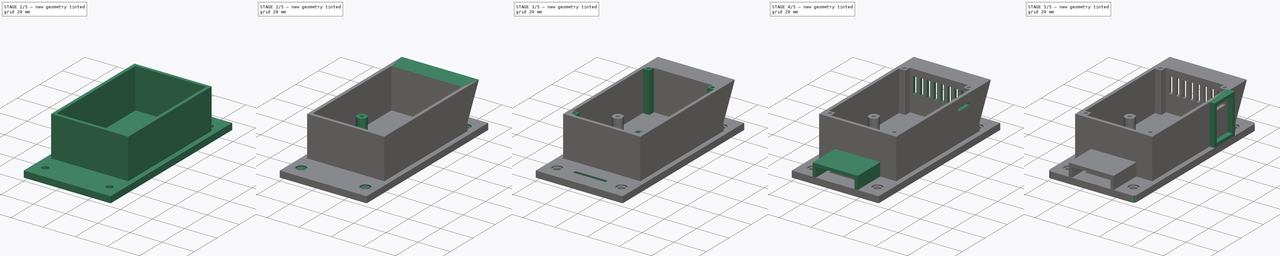
[diagram: build sequence overview — one tinted view per stage of 5, left to right]
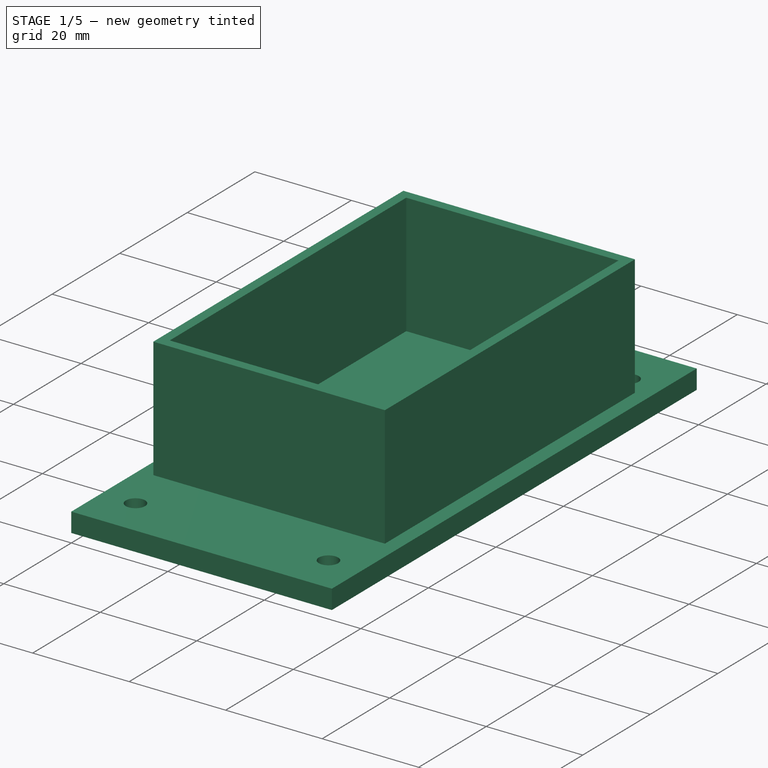
[diagram: stage 1 of 5 — iso view after this stage's code; geometry added in this stage tinted green]
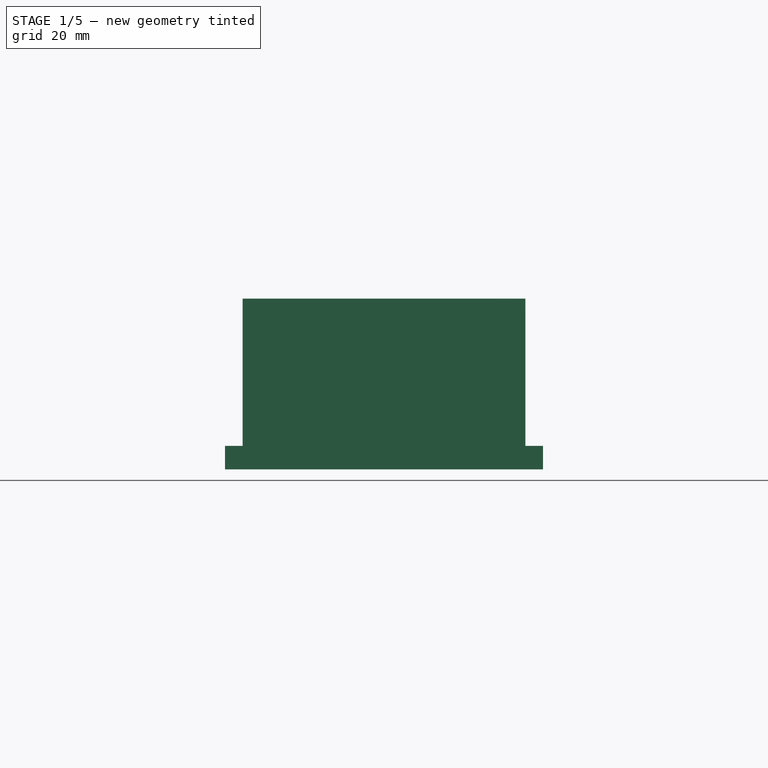
[diagram: stage 1 of 5 — front view after this stage's code; geometry added in this stage tinted green]
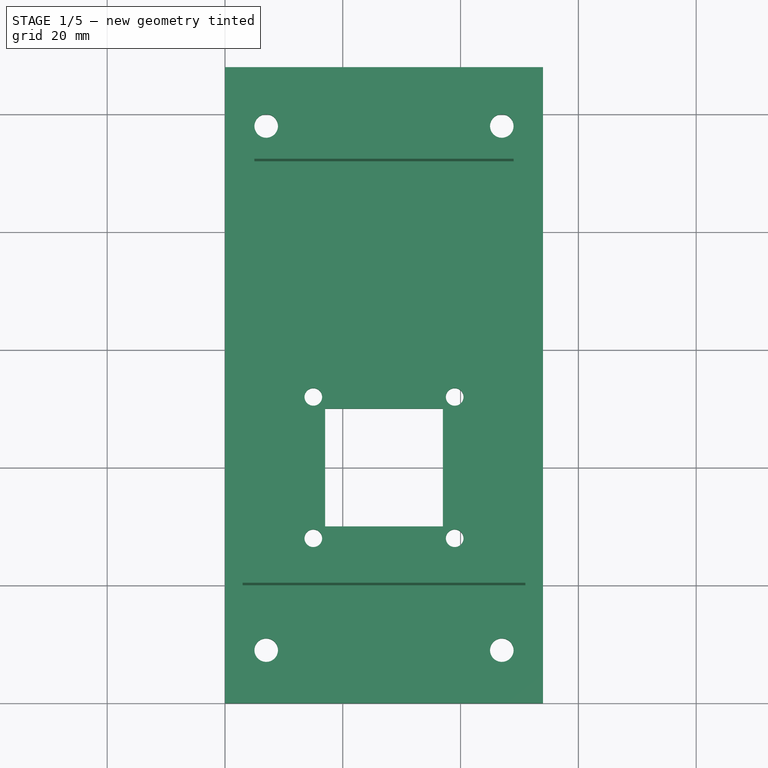
[diagram: stage 1 of 5 — top view after this stage's code; geometry added in this stage tinted green]
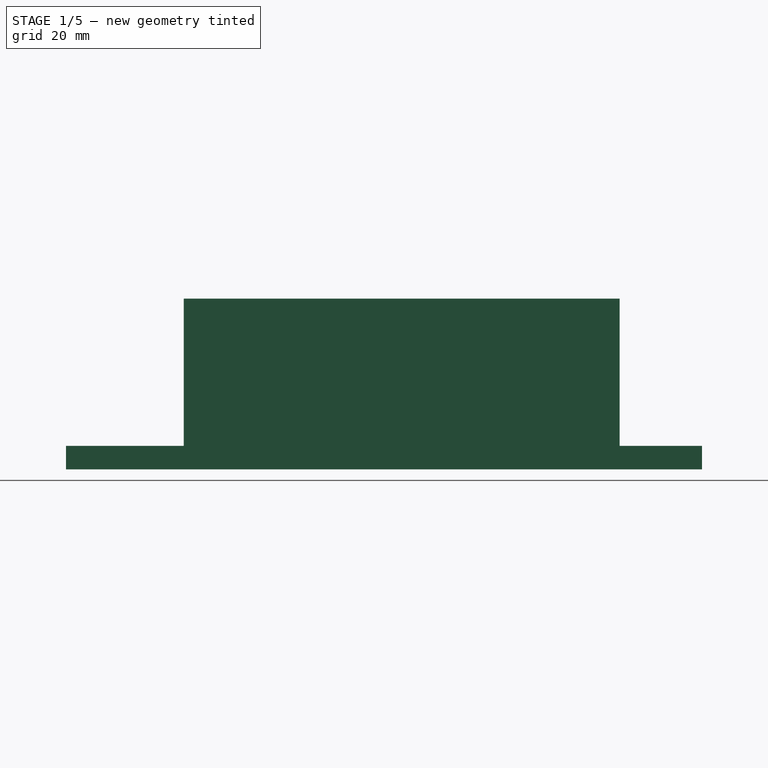
[diagram: stage 1 of 5 — right view after this stage's code; geometry added in this stage tinted green]
FCSTD DOCUMENT  (FreeCAD 0.16R6706 (Git))
Label: iROB-EA_Modulo_Sensores_V3
License: All rights reserved
LicenseURL: http://en.wikipedia.org/wiki/All_rights_reserved
objects: Sketcher::SketchObject×19, PartDesign::Pocket×10, PartDesign::Pad×9, PartDesign::Fillet×4, PartDesign::LinearPattern×1
note: 62 computed .brp shape members not serialized (recipe doc carries the construction recipe); baked Part::Feature solids carry a one-line shape summary decoded from their .brp

FEATURE [Sketcher::SketchObject] Sketch  label="Base"
  sketch-geometry (4):
    g0: LineSegment StartX=0 StartY=108 StartZ=0 EndX=54 EndY=108 EndZ=0
    g1: LineSegment StartX=54 StartY=108 StartZ=0 EndX=54 EndY=0 EndZ=0
    g2: LineSegment StartX=54 StartY=0 StartZ=0 EndX=0 EndY=0 EndZ=0
    g3: LineSegment StartX=0 StartY=0 StartZ=0 EndX=0 EndY=108 EndZ=0
  constraints (11):
    c: Coincident(g0,g1)
    c: Coincident(g1,g2)
    c: Coincident(g2,g3)
    c: Coincident(g3,g0)
    c: Horizontal(g0)
    c: Horizontal(g2)
    c: Vertical(g1)
    c: Vertical(g3)
    c: Coincident(g2,g-1)
    c: DistanceX(g2,g2) = 54
    c: DistanceY(g3,g3) = 108
FEATURE [PartDesign::Pad] Pad
  Length = 4
  Length2 = 100
  Sketch = -> Sketch
  Type = 0
FEATURE [Sketcher::SketchObject] Sketch001  label="Contenedor_Sensores"
  Placement = pos=(0,0,4) rot=(0,0,1;0rad)
  Support = -> Pad [Face6]
  sketch-geometry (8):
    g0: LineSegment StartX=3 StartY=94 StartZ=0 EndX=51 EndY=94 EndZ=0
    g1: LineSegment StartX=51 StartY=94 StartZ=0 EndX=51 EndY=20 EndZ=0
    g2: LineSegment StartX=51 StartY=20 StartZ=0 EndX=3 EndY=20 EndZ=0
    g3: LineSegment StartX=3 StartY=20 StartZ=0 EndX=3 EndY=94 EndZ=0
    g4: LineSegment StartX=5 StartY=92 StartZ=0 EndX=49 EndY=92 EndZ=0
    g5: LineSegment StartX=49 StartY=92 StartZ=0 EndX=49 EndY=22 EndZ=0
    g6: LineSegment StartX=49 StartY=22 StartZ=0 EndX=5 EndY=22 EndZ=0
    g7: LineSegment StartX=5 StartY=22 StartZ=0 EndX=5 EndY=92 EndZ=0
  constraints (24):
    c: Coincident(g0,g1)
    c: Coincident(g1,g2)
    c: Coincident(g2,g3)
    c: Coincident(g3,g0)
    c: Horizontal(g0)
    c: Horizontal(g2)
    c: Vertical(g1)
    c: Vertical(g3)
    c: DistanceX(g0,g0) = 48
    c: DistanceY(g3,g3) = 74
    c: Coincident(g4,g5)
    c: Coincident(g5,g6)
    c: Coincident(g6,g7)
    c: Coincident(g7,g4)
    c: Horizontal(g4)
    c: Horizontal(g6)
    c: Vertical(g5)
    c: Vertical(g7)
    c: DistanceX(g4,g4) = 44
    c: DistanceY(g7,g7) = 70
    c: DistanceX(g2,g6) = 2
    c: DistanceY(g2,g6) = 2
    c: DistanceX(g2,g-1) = -3
    c: DistanceY(g-1,g2) = 20
FEATURE [PartDesign::Pad] Pad001
  Length = 25
  Length2 = 100
  Sketch = -> Sketch001
  Type = 0
FEATURE [Sketcher::SketchObject] Sketch002  label="Tornillos_Base"
  Placement = pos=(0,0,4) rot=(0,0,1;0rad)
  Support = -> Pad001 [Face5]
  sketch-geometry (4):
    g0: Circle CenterX=7 CenterY=9 CenterZ=0 NormalX=0 NormalY=0 NormalZ=1 Radius=2
    g1: Circle CenterX=47 CenterY=9 CenterZ=0 NormalX=0 NormalY=0 NormalZ=1 Radius=2
    g2: Circle CenterX=7 CenterY=98 CenterZ=0 NormalX=0 NormalY=0 NormalZ=1 Radius=2
    g3: Circle CenterX=47 CenterY=98 CenterZ=0 NormalX=0 NormalY=0 NormalZ=1 Radius=2
  constraints (12):
    c: Radius(g0) = 2
    c: Radius(g1) = 2
    c: DistanceX(g0,g1) = 40
    c: DistanceY(g0,g1) = 0
    c: DistanceY(g-1,g0) = 9
    c: DistanceX(g0,g-1) = -7
    c: Radius(g3) = 2
    c: Radius(g2) = 2
    c: DistanceX(g2,g3) = 40
    c: DistanceY(g3,g2) = 0
    c: DistanceX(g2,g0) = 0
    c: DistanceY(g0,g2) = 89
FEATURE [PartDesign::Pocket] Pocket
  Length = 5
  Sketch = -> Sketch002
  Type = 0
FEATURE [Sketcher::SketchObject] Sketch003  label="Ventilador"
  Placement = pos=(0,0,4) rot=(0,0,1;0rad)
  Support = -> Pocket [Face5]
  sketch-geometry (4):
    g0: LineSegment StartX=17 StartY=50 StartZ=0 EndX=37 EndY=50 EndZ=0
    g1: LineSegment StartX=37 StartY=50 StartZ=0 EndX=37 EndY=30 EndZ=0
    g2: LineSegment StartX=37 StartY=30 StartZ=0 EndX=17 EndY=30 EndZ=0
    g3: LineSegment StartX=17 StartY=30 StartZ=0 EndX=17 EndY=50 EndZ=0
  constraints (12):
    c: Coincident(g0,g1)
    c: Coincident(g1,g2)
    c: Coincident(g2,g3)
    c: Coincident(g3,g0)
    c: Horizontal(g0)
    c: Horizontal(g2)
    c: Vertical(g1)
    c: Vertical(g3)
    c: DistanceX(g0,g0) = 20
    c: DistanceY(g1,g1) = 20
    c: DistanceX(g2,g-1) = -17
    c: DistanceY(g-1,g2) = 30
FEATURE [PartDesign::Pocket] Pocket001
  Length = 5
  Sketch = -> Sketch003
  Type = 0
FEATURE [Sketcher::SketchObject] Sketch004  label="Ventilador_Tornillos"
  Placement = pos=(0,0,4) rot=(0,0,1;0rad)
  Support = -> Pocket001 [Face19]
  sketch-geometry (4):
    g0: Circle CenterX=15 CenterY=52 CenterZ=0 NormalX=0 NormalY=0 NormalZ=1 Radius=1.5
    g1: Circle CenterX=39 CenterY=52 CenterZ=0 NormalX=0 NormalY=0 NormalZ=1 Radius=1.5
    g2: Circle CenterX=15 CenterY=28 CenterZ=0 NormalX=0 NormalY=0 NormalZ=1 Radius=1.5
    g3: Circle CenterX=39 CenterY=28 CenterZ=0 NormalX=0 NormalY=0 NormalZ=1 Radius=1.5
  constraints (12):
    c: Radius(g0) = 1.5
    c: Radius(g1) = 1.5
    c: DistanceY(g1,g0) = 0
    c: Radius(g2) = 1.5
    c: Radius(g3) = 1.5
    c: DistanceX(g2,g3) = 24
    c: DistanceX(g2,g0) = 0
    c: DistanceX(g3,g1) = 0
    c: DistanceY(g2,g0) = 24
    c: DistanceY(g2,g3) = 0
    c: DistanceX(g-1,g2) = 15
    c: DistanceY(g-1,g2) = 28
FEATURE [PartDesign::Pocket] Pocket002
  Length = 5
  Sketch = -> Sketch004
  Type = 0
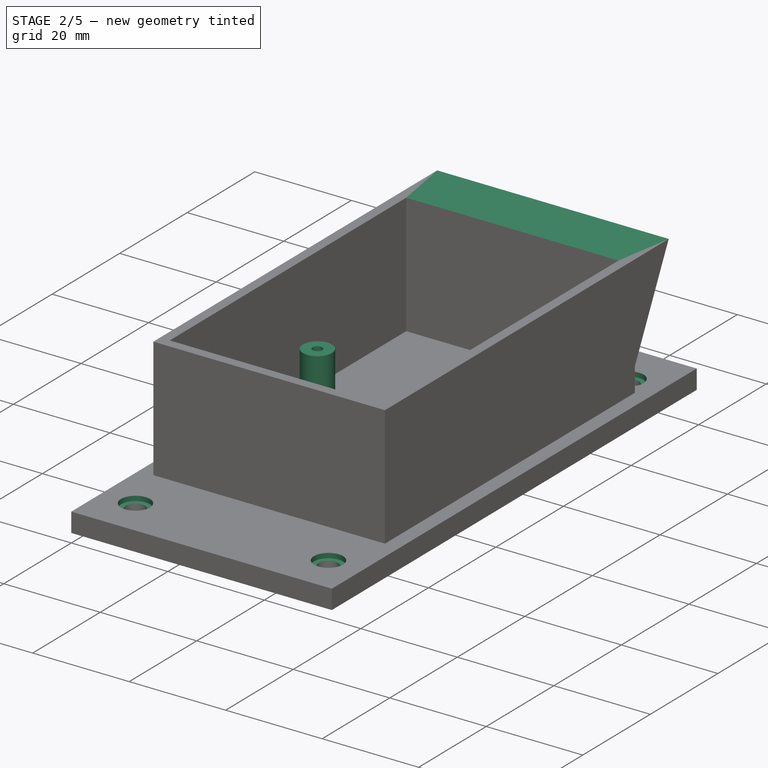
[diagram: stage 2 of 5 — iso view after this stage's code; geometry added in this stage tinted green]
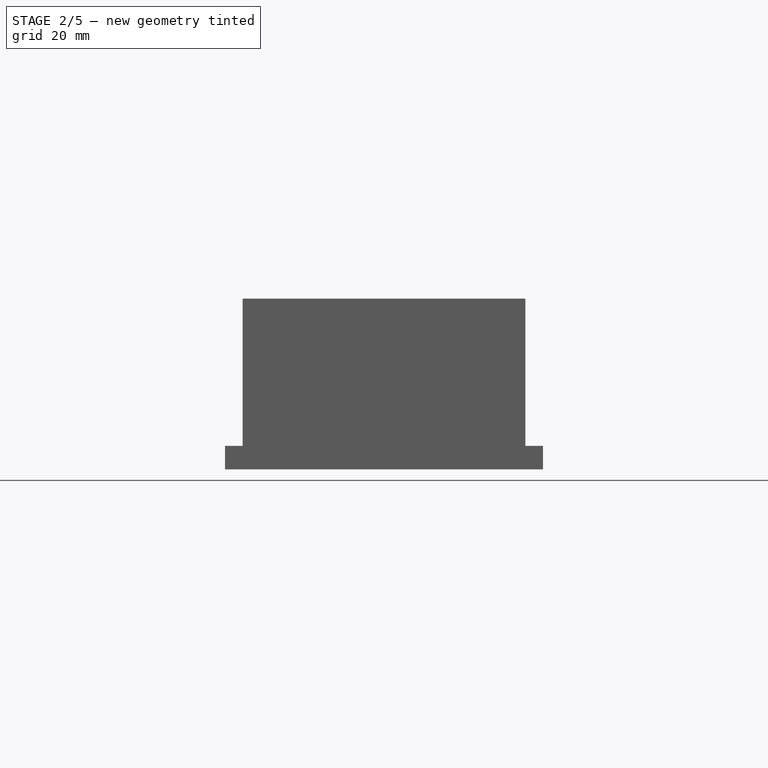
[diagram: stage 2 of 5 — front view after this stage's code; geometry added in this stage tinted green]
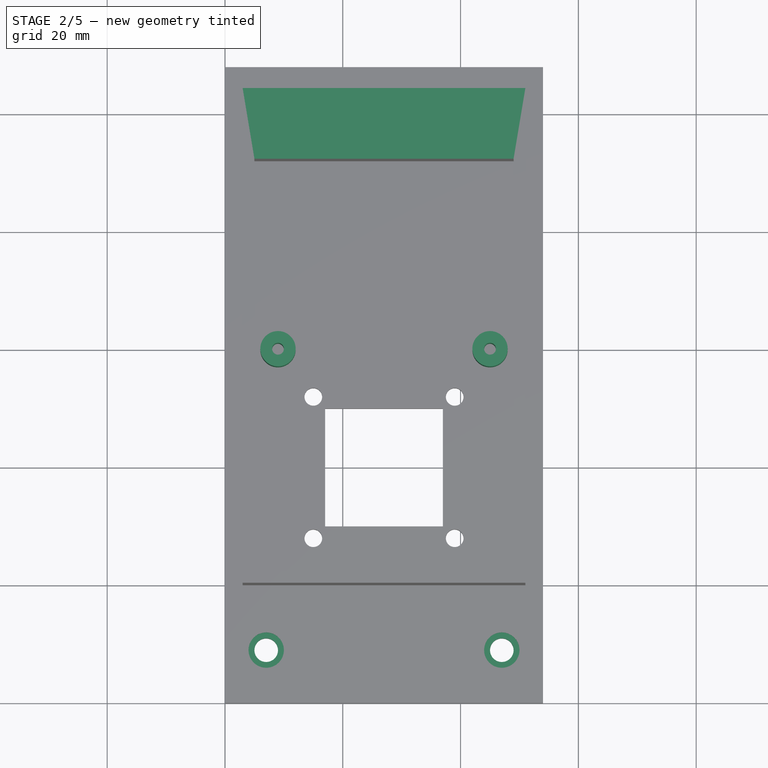
[diagram: stage 2 of 5 — top view after this stage's code; geometry added in this stage tinted green]
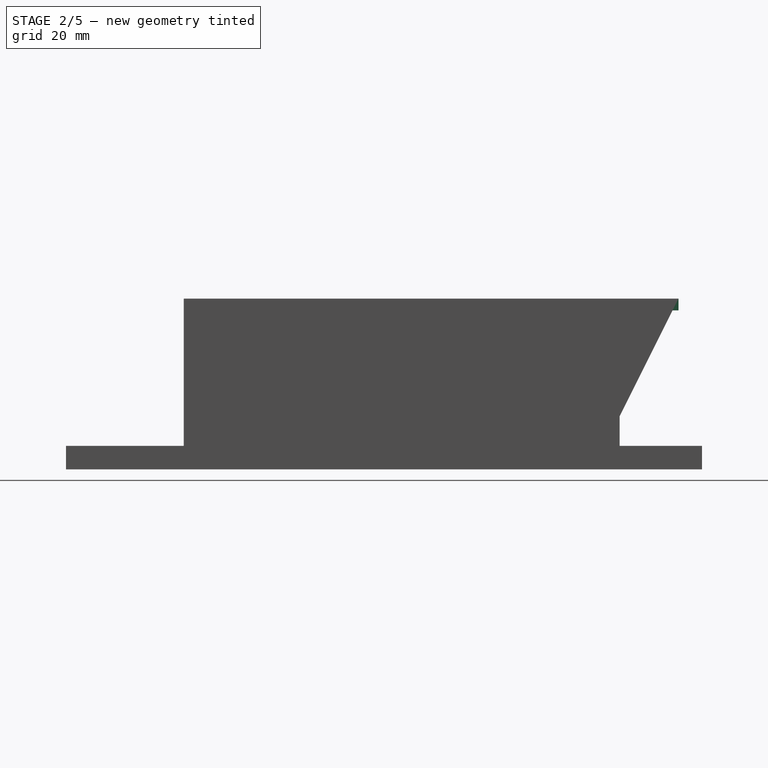
[diagram: stage 2 of 5 — right view after this stage's code; geometry added in this stage tinted green]
FEATURE [Sketcher::SketchObject] Sketch005  label="Soportes_Circuito"
  Placement = pos=(0,0,4) rot=(0,0,1;0rad)
  Support = -> Pocket002 [Face23]
  sketch-geometry (4):
    g0: Circle CenterX=9 CenterY=60 CenterZ=0 NormalX=0 NormalY=0 NormalZ=1 Radius=1
    g1: Circle CenterX=9 CenterY=60 CenterZ=0 NormalX=0 NormalY=0 NormalZ=1 Radius=3
    g2: Circle CenterX=45 CenterY=60 CenterZ=0 NormalX=0 NormalY=0 NormalZ=1 Radius=1
    g3: Circle CenterX=45 CenterY=60 CenterZ=0 NormalX=0 NormalY=0 NormalZ=1 Radius=3
  constraints (10):
    c: Radius(g0) = 1
    c: Radius(g1) = 3
    c: Coincident(g1,g0)
    c: Radius(g2) = 1
    c: Radius(g3) = 3
    c: Coincident(g2,g3)
    c: DistanceY(g2,g0) = 0
    c: DistanceX(g0,g2) = 36
    c: DistanceY(g-1,g0) = 60
    c: DistanceX(g-1,g0) = 9
FEATURE [PartDesign::Pad] Pad002
  Length = 10
  Length2 = 100
  Sketch = -> Sketch005
  Type = 0
FEATURE [Sketcher::SketchObject] Sketch006  label="Tornillos_Base_Protector"
  Placement = pos=(0,0,4) rot=(0,0,1;0rad)
  Support = -> Pad002 [Face5]
  sketch-geometry (4):
    g0: Circle CenterX=47 CenterY=98 CenterZ=0 NormalX=0 NormalY=0 NormalZ=1 Radius=3
    g1: Circle CenterX=7 CenterY=98 CenterZ=0 NormalX=0 NormalY=0 NormalZ=1 Radius=3
    g2: Circle CenterX=7 CenterY=9 CenterZ=0 NormalX=0 NormalY=0 NormalZ=1 Radius=3
    g3: Circle CenterX=47 CenterY=9 CenterZ=0 NormalX=0 NormalY=0 NormalZ=1 Radius=3
  constraints (12):
    c: Radius(g0) = 3
    c: Radius(g1) = 3
    c: DistanceY(g1,g0) = 0
    c: DistanceX(g1,g0) = 40
    c: Radius(g2) = 3
    c: Radius(g3) = 3
    c: DistanceY(g2,g3) = 0
    c: DistanceX(g1,g2) = 0
    c: DistanceY(g2,g1) = 89
    c: DistanceX(g3,g0) = 0
    c: DistanceY(g-1,g2) = 9
    c: DistanceX(g-1,g2) = 7
FEATURE [PartDesign::Pocket] Pocket003
  Length = 1
  Sketch = -> Sketch006
  Type = 0
FEATURE [Sketcher::SketchObject] Sketch007  label="Protector_Ranuras_Top"
  Placement = pos=(0,94,0) rot=(0,0.707107,0.707107;3.14159rad)
  Support = -> Pocket003 [Face23]
  sketch-geometry (4):
    g0: LineSegment StartX=-49 StartY=29 StartZ=0 EndX=-5 EndY=29 EndZ=0
    g1: LineSegment StartX=-5 StartY=29 StartZ=0 EndX=-5 EndY=27 EndZ=0
    g2: LineSegment StartX=-5 StartY=27 StartZ=0 EndX=-49 EndY=27 EndZ=0
    g3: LineSegment StartX=-49 StartY=27 StartZ=0 EndX=-49 EndY=29 EndZ=0
  constraints (12):
    c: Coincident(g0,g1)
    c: Coincident(g1,g2)
    c: Coincident(g2,g3)
    c: Coincident(g3,g0)
    c: Horizontal(g0)
    c: Horizontal(g2)
    c: Vertical(g1)
    c: Vertical(g3)
    c: DistanceY(g1,g1) = 2
    c: DistanceX(g0,g0) = 44
    c: DistanceY(g-1,g1) = 27
    c: DistanceX(g1,g-1) = 5
FEATURE [PartDesign::Pad] Pad003
  Length = 10
  Length2 = 100
  Sketch = -> Sketch007
  Type = 0
FEATURE [Sketcher::SketchObject] Sketch008  label="Protector_Ranuras_Izquierdo"
  Placement = pos=(49,0,0) rot=(0.57735,0.57735,0.57735;2.0944rad)
  Support = -> Pad003 [Face32]
  sketch-geometry (3):
    g0: LineSegment StartX=94 StartY=29 StartZ=0 EndX=104 EndY=29 EndZ=0
    g1: LineSegment StartX=94 StartY=29 StartZ=0 EndX=94 EndY=9 EndZ=0
    g2: LineSegment StartX=104 StartY=29 StartZ=0 EndX=94 EndY=9 EndZ=0
  constraints (9):
    c: Horizontal(g0)
    c: Vertical(g1)
    c: Coincident(g1,g0)
    c: DistanceX(g0,g0) = 10
    c: DistanceY(g1,g1) = 20
    c: Coincident(g2,g0)
    c: Coincident(g2,g1)
    c: DistanceX(g-1,g1) = 94
    c: DistanceY(g-1,g1) = 9
FEATURE [PartDesign::Pad] Pad004
  Length = 2
  Length2 = 100
  Sketch = -> Sketch008
  Type = 0
FEATURE [Sketcher::SketchObject] Sketch009  label="Protector_Ranuras_Derecho"
  Placement = pos=(5,0,0) rot=(0.57735,-0.57735,-0.57735;2.0944rad)
  Support = -> Pad004 [Face34]
  sketch-geometry (3):
    g0: LineSegment StartX=-104 StartY=29 StartZ=0 EndX=-94 EndY=29 EndZ=0
    g1: LineSegment StartX=-94 StartY=29 StartZ=0 EndX=-94 EndY=9 EndZ=0
    g2: LineSegment StartX=-104 StartY=29 StartZ=0 EndX=-94 EndY=9 EndZ=0
  constraints (9):
    c: Horizontal(g0)
    c: DistanceX(g0,g0) = 10
    c: Vertical(g1)
    c: DistanceY(g1,g1) = 20
    c: Coincident(g0,g1)
    c: Coincident(g2,g0)
    c: Coincident(g1,g2)
    c: DistanceX(g1,g-1) = 94
    c: DistanceY(g-1,g1) = 9
FEATURE [PartDesign::Pad] Pad005
  Length = 2
  Length2 = 100
  Sketch = -> Sketch009
  Type = 0
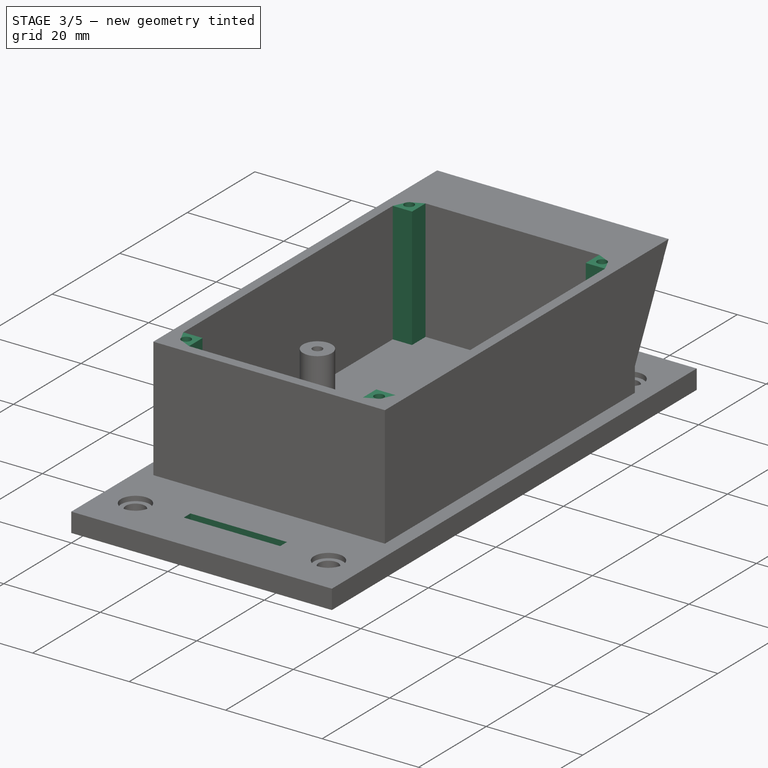
[diagram: stage 3 of 5 — iso view after this stage's code; geometry added in this stage tinted green]
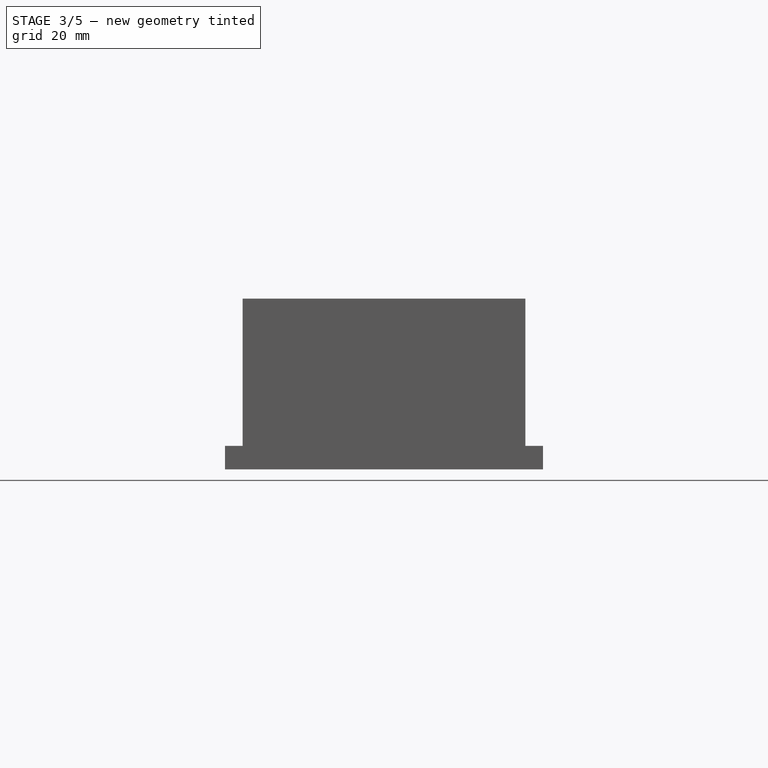
[diagram: stage 3 of 5 — front view after this stage's code; geometry added in this stage tinted green]
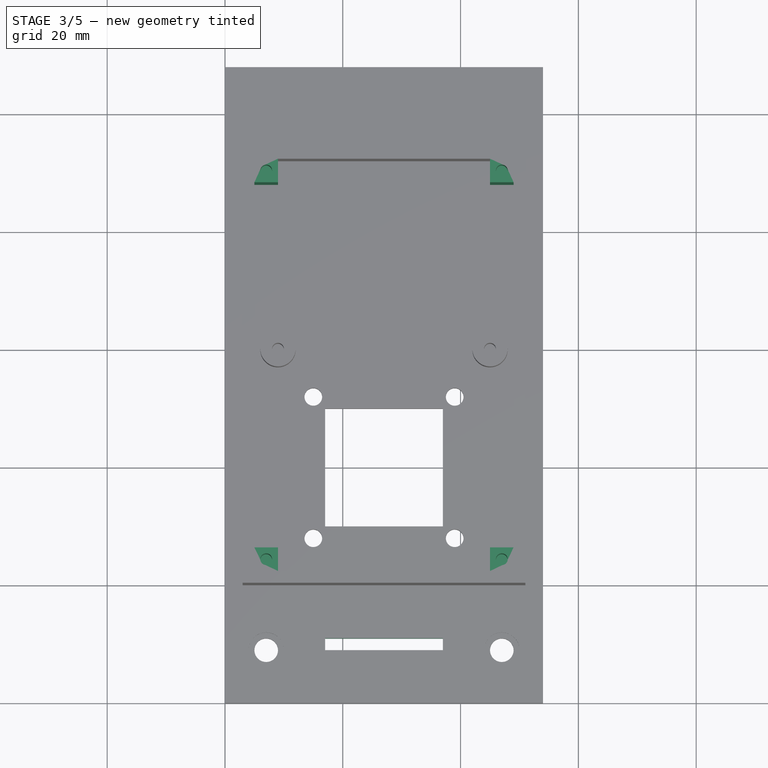
[diagram: stage 3 of 5 — top view after this stage's code; geometry added in this stage tinted green]
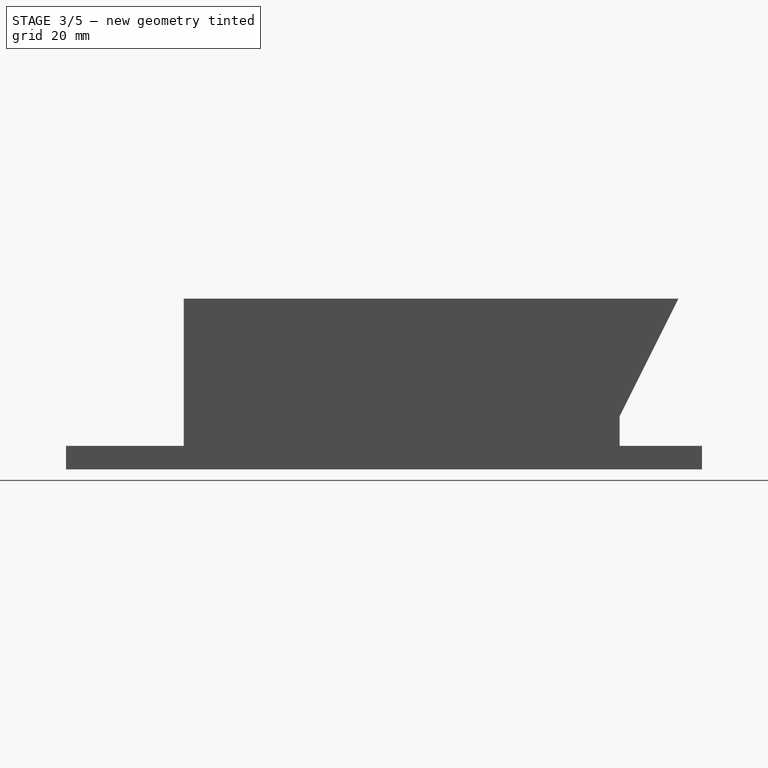
[diagram: stage 3 of 5 — right view after this stage's code; geometry added in this stage tinted green]
FEATURE [Sketcher::SketchObject] Sketch010  label="Protector_Ranuras_Eliminado_Borde"
  Placement = pos=(5,0,0) rot=(0.57735,-0.57735,-0.57735;2.0944rad)
  Support = -> Pad005 [Face43]
  sketch-geometry (3):
    g0: LineSegment StartX=-104.428 StartY=29.8884 StartZ=0 EndX=-104.428 EndY=26.0348 EndZ=0
    g1: LineSegment StartX=-104.428 StartY=26.0348 StartZ=0 EndX=-102.461 EndY=26.0348 EndZ=0
    g2: LineSegment StartX=-104.428 StartY=29.8884 StartZ=0 EndX=-102.461 EndY=26.0348 EndZ=0
  constraints (5):
    c: Vertical(g0)
    c: Horizontal(g1)
    c: Coincident(g0,g1)
    c: Coincident(g2,g0)
    c: Coincident(g2,g1)
FEATURE [PartDesign::Pocket] Pocket004
  Length = 60
  Sketch = -> Sketch010
  Type = 0
FEATURE [Sketcher::SketchObject] Sketch011  label="Soportes_Tornillos_Tapa"
  Placement = pos=(0,0,4) rot=(0,0,1;0rad)
  Support = -> Pocket004 [Face27]
  sketch-geometry (16):
    g0: LineSegment StartX=5 StartY=92 StartZ=0 EndX=9 EndY=92 EndZ=0
    g1: LineSegment StartX=9 StartY=92 StartZ=0 EndX=9 EndY=88 EndZ=0
    g2: LineSegment StartX=9 StartY=88 StartZ=0 EndX=5 EndY=88 EndZ=0
    g3: LineSegment StartX=5 StartY=88 StartZ=0 EndX=5 EndY=92 EndZ=0
    g4: LineSegment StartX=45 StartY=92 StartZ=0 EndX=49 EndY=92 EndZ=0
    g5: LineSegment StartX=49 StartY=92 StartZ=0 EndX=49 EndY=88 EndZ=0
    g6: LineSegment StartX=49 StartY=88 StartZ=0 EndX=45 EndY=88 EndZ=0
    g7: LineSegment StartX=45 StartY=88 StartZ=0 EndX=45 EndY=92 EndZ=0
    g8: LineSegment StartX=5 StartY=26 StartZ=0 EndX=9 EndY=26 EndZ=0
    g9: LineSegment StartX=9 StartY=26 StartZ=0 EndX=9 EndY=22 EndZ=0
    g10: LineSegment StartX=9 StartY=22 StartZ=0 EndX=5 EndY=22 EndZ=0
    g11: LineSegment StartX=5 StartY=22 StartZ=0 EndX=5 EndY=26 EndZ=0
    g12: LineSegment StartX=45 StartY=26 StartZ=0 EndX=49 EndY=26 EndZ=0
    g13: LineSegment StartX=49 StartY=26 StartZ=0 EndX=49 EndY=22 EndZ=0
    g14: LineSegment StartX=49 StartY=22 StartZ=0 EndX=45 EndY=22 EndZ=0
    g15: LineSegment StartX=45 StartY=22 StartZ=0 EndX=45 EndY=26 EndZ=0
  constraints (48):
    c: Coincident(g0,g1)
    c: Coincident(g1,g2)
    c: Coincident(g2,g3)
    c: Coincident(g3,g0)
    c: Horizontal(g0)
    c: Horizontal(g2)
    c: Vertical(g1)
    c: Vertical(g3)
    c: DistanceX(g0,g0) = 4
    c: DistanceY(g1,g1) = 4
    c: Coincident(g4,g5)
    c: Coincident(g5,g6)
    c: Coincident(g6,g7)
    c: Coincident(g7,g4)
    c: Horizontal(g4)
    c: Horizontal(g6)
    c: Vertical(g5)
    c: Vertical(g7)
    c: DistanceX(g4,g4) = 4
    c: DistanceY(g5,g5) = 4
    c: DistanceY(g6,g1) = 0
    c: DistanceX(g1,g6) = 36
    c: Coincident(g8,g9)
    c: Coincident(g9,g10)
    c: Coincident(g10,g11)
    c: Coincident(g11,g8)
    c: Horizontal(g8)
    c: Horizontal(g10)
    c: Vertical(g9)
    c: Vertical(g11)
    c: DistanceX(g8,g8) = 4
    c: DistanceY(g9,g9) = 4
    c: DistanceY(g8,g2) = 62
    c: DistanceX(g2,g8) = 0
    c: Coincident(g12,g13)
    c: Coincident(g13,g14)
    c: Coincident(g14,g15)
    c: Coincident(g15,g12)
    c: Horizontal(g12)
    c: Horizontal(g14)
    c: Vertical(g13)
    c: Vertical(g15)
    c: DistanceX(g12,g12) = 4
    c: DistanceY(g15,g15) = 4
    c: DistanceY(g9,g14) = 0
    c: DistanceX(g9,g14) = 36
    c: DistanceX(g-1,g10) = 5
    c: DistanceY(g-1,g10) = 22
FEATURE [PartDesign::Pad] Pad006
  Length = 25
  Length2 = 100
  Sketch = -> Sketch011
  Type = 0
FEATURE [Sketcher::SketchObject] Sketch012  label="Soportes_Tornillos_Taladro"
  Placement = pos=(0,0,29) rot=(0,0,1;0rad)
  Support = -> Pad006 [Face59]
  sketch-geometry (4):
    g0: Circle CenterX=7 CenterY=90 CenterZ=0 NormalX=0 NormalY=0 NormalZ=1 Radius=1
    g1: Circle CenterX=47 CenterY=90 CenterZ=0 NormalX=0 NormalY=0 NormalZ=1 Radius=1
    g2: Circle CenterX=7 CenterY=24 CenterZ=0 NormalX=0 NormalY=0 NormalZ=1 Radius=1
    g3: Circle CenterX=47 CenterY=24 CenterZ=0 NormalX=0 NormalY=0 NormalZ=1 Radius=1
  constraints (12):
    c: Radius(g0) = 1
    c: Radius(g1) = 1
    c: DistanceY(g1,g0) = 0
    c: DistanceX(g0,g1) = 40
    c: Radius(g2) = 1
    c: Radius(g3) = 1
    c: DistanceY(g3,g2) = 0
    c: DistanceX(g0,g2) = 0
    c: DistanceY(g2,g0) = 66
    c: DistanceX(g3,g1) = 0
    c: DistanceY(g-1,g2) = 24
    c: DistanceX(g-1,g2) = 7
FEATURE [PartDesign::Pocket] Pocket005
  Length = 10
  Sketch = -> Sketch012
  Type = 0
FEATURE [Sketcher::SketchObject] Sketch013  label="Ranura_Cable_Principal_Base"
  Placement = pos=(0,0,4) rot=(0,0,1;0rad)
  Support = -> Pocket005 [Face5]
  sketch-geometry (4):
    g0: LineSegment StartX=17 StartY=11 StartZ=0 EndX=37 EndY=11 EndZ=0
    g1: LineSegment StartX=37 StartY=11 StartZ=0 EndX=37 EndY=9 EndZ=0
    g2: LineSegment StartX=37 StartY=9 StartZ=0 EndX=17 EndY=9 EndZ=0
    g3: LineSegment StartX=17 StartY=9 StartZ=0 EndX=17 EndY=11 EndZ=0
  constraints (12):
    c: Coincident(g0,g1)
    c: Coincident(g1,g2)
    c: Coincident(g2,g3)
    c: Coincident(g3,g0)
    c: Horizontal(g0)
    c: Horizontal(g2)
    c: Vertical(g1)
    c: Vertical(g3)
    c: DistanceX(g0,g0) = 20
    c: DistanceY(g1,g1) = 2
    c: DistanceX(g-1,g2) = 17
    c: DistanceY(g2,g-1) = -9
FEATURE [PartDesign::Pocket] Pocket006
  Length = 5
  Sketch = -> Sketch013
  Type = 0
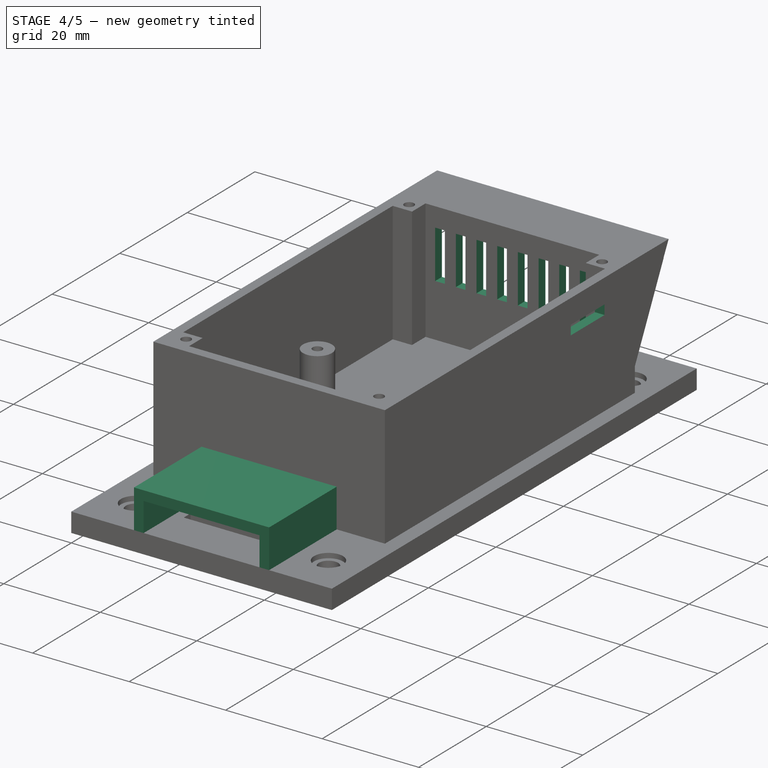
[diagram: stage 4 of 5 — iso view after this stage's code; geometry added in this stage tinted green]
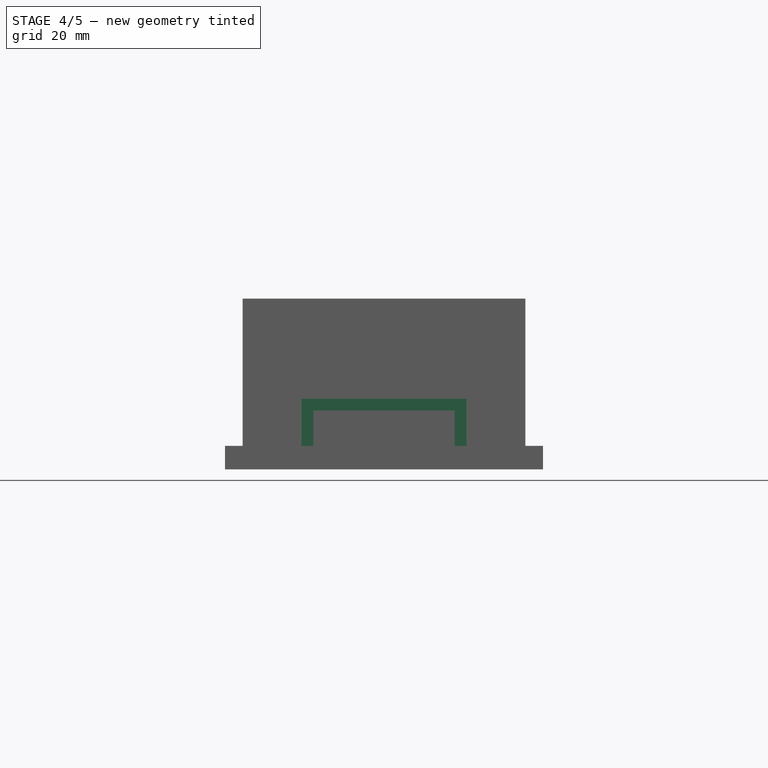
[diagram: stage 4 of 5 — front view after this stage's code; geometry added in this stage tinted green]
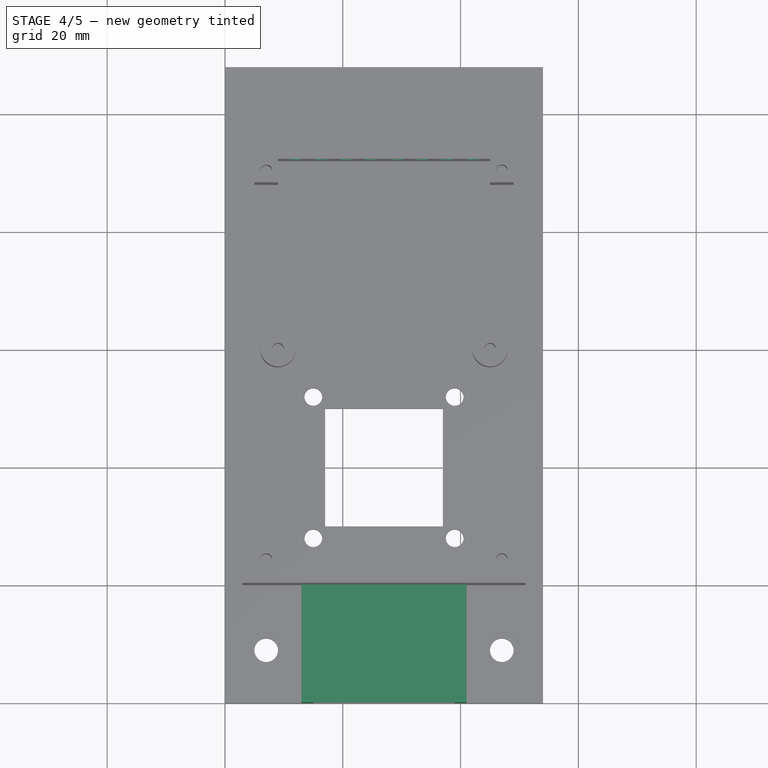
[diagram: stage 4 of 5 — top view after this stage's code; geometry added in this stage tinted green]
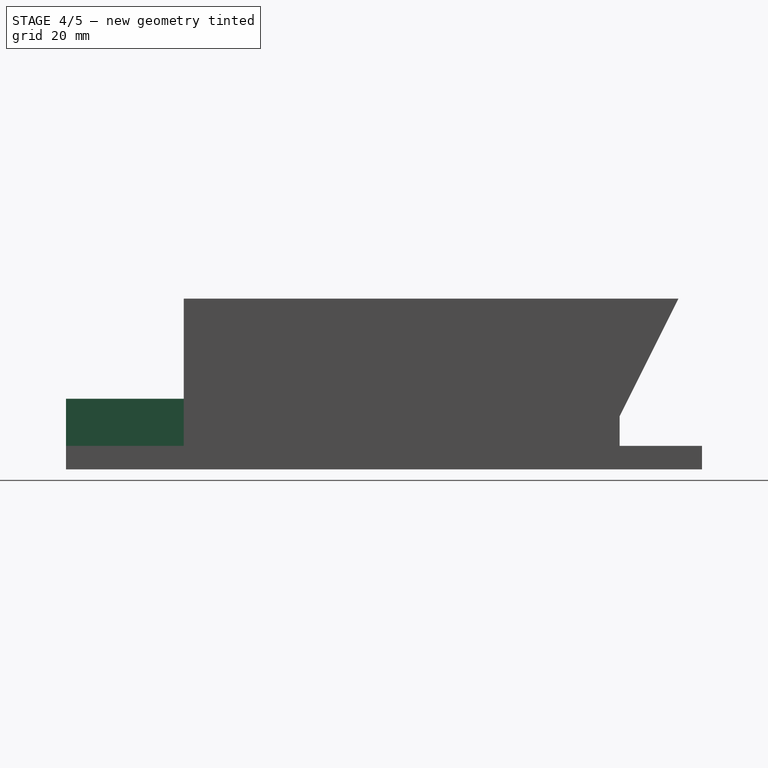
[diagram: stage 4 of 5 — right view after this stage's code; geometry added in this stage tinted green]
FEATURE [Sketcher::SketchObject] Sketch014  label="Ranura_Cable_Principal_Entrada"
  Placement = pos=(0,20,0) rot=(1,0,0;1.5708rad)
  Support = -> Pocket006 [Face30]
  sketch-geometry (4):
    g0: LineSegment StartX=19 StartY=8 StartZ=0 EndX=35 EndY=8 EndZ=0
    g1: LineSegment StartX=35 StartY=8 StartZ=0 EndX=35 EndY=6 EndZ=0
    g2: LineSegment StartX=35 StartY=6 StartZ=0 EndX=19 EndY=6 EndZ=0
    g3: LineSegment StartX=19 StartY=6 StartZ=0 EndX=19 EndY=8 EndZ=0
  constraints (12):
    c: Coincident(g0,g1)
    c: Coincident(g1,g2)
    c: Coincident(g2,g3)
    c: Coincident(g3,g0)
    c: Horizontal(g0)
    c: Horizontal(g2)
    c: Vertical(g1)
    c: Vertical(g3)
    c: DistanceX(g0,g0) = 16
    c: DistanceY(g1,g1) = 2
    c: DistanceY(g-1,g2) = 6
    c: DistanceX(g-1,g2) = 19
FEATURE [PartDesign::Pocket] Pocket007
  Length = 5
  Sketch = -> Sketch014
  Type = 0
FEATURE [Sketcher::SketchObject] Sketch015  label="Protector_Cable_Principal"
  Placement = pos=(0,20,0) rot=(1,0,0;1.5708rad)
  Support = -> Pocket007 [Face30]
  sketch-geometry (8):
    g0: LineSegment StartX=15 StartY=10 StartZ=0 EndX=39 EndY=10 EndZ=0
    g1: LineSegment StartX=15 StartY=10 StartZ=0 EndX=15 EndY=4 EndZ=0
    g2: LineSegment StartX=39 StartY=10 StartZ=0 EndX=39 EndY=4 EndZ=0
    g3: LineSegment StartX=13 StartY=12 StartZ=0 EndX=41 EndY=12 EndZ=0
    g4: LineSegment StartX=41 StartY=12 StartZ=0 EndX=41 EndY=4 EndZ=0
    g5: LineSegment StartX=13 StartY=12 StartZ=0 EndX=13 EndY=4 EndZ=0
    g6: LineSegment StartX=39 StartY=4 StartZ=0 EndX=41 EndY=4 EndZ=0
    g7: LineSegment StartX=13 StartY=4 StartZ=0 EndX=15 EndY=4 EndZ=0
  constraints (24):
    c: Horizontal(g0)
    c: DistanceX(g0,g0) = 24
    c: Vertical(g1)
    c: DistanceY(g1,g1) = 6
    c: Coincident(g0,g1)
    c: Vertical(g2)
    c: DistanceY(g2,g2) = 6
    c: Coincident(g2,g0)
    c: Horizontal(g3)
    c: DistanceX(g3,g3) = 28
    c: Vertical(g4)
    c: DistanceY(g4,g4) = 8
    c: Coincident(g3,g4)
    c: DistanceY(g5,g5) = 8
    c: Coincident(g5,g3)
    c: Vertical(g5)
    c: DistanceX(g5,g1) = 2
    c: DistanceY(g1,g5) = 0
    c: Coincident(g6,g2)
    c: Coincident(g6,g4)
    c: Coincident(g7,g1)
    c: Coincident(g7,g5)
    c: DistanceY(g-1,g5) = 4
    c: DistanceX(g-1,g5) = 13
FEATURE [PartDesign::Pad] Pad007
  Length = 20
  Length2 = 100
  Sketch = -> Sketch015
  Type = 0
FEATURE [Sketcher::SketchObject] Sketch016  label="Ranura"
  Placement = pos=(0,94,0) rot=(0,0.707107,0.707107;3.14159rad)
  Support = -> Pad007 [Face25]
  sketch-geometry (4):
    g0: LineSegment StartX=-13 StartY=25 StartZ=0 EndX=-11 EndY=25 EndZ=0
    g1: LineSegment StartX=-11 StartY=25 StartZ=0 EndX=-11 EndY=15 EndZ=0
    g2: LineSegment StartX=-11 StartY=15 StartZ=0 EndX=-13 EndY=15 EndZ=0
    g3: LineSegment StartX=-13 StartY=15 StartZ=0 EndX=-13 EndY=25 EndZ=0
  constraints (12):
    c: Coincident(g0,g1)
    c: Coincident(g1,g2)
    c: Coincident(g2,g3)
    c: Coincident(g3,g0)
    c: Horizontal(g0)
    c: Horizontal(g2)
    c: Vertical(g1)
    c: Vertical(g3)
    c: DistanceX(g0,g0) = 2
    c: DistanceY(g1,g1) = 10
    c: DistanceX(g1,g-1) = 11
    c: DistanceY(g-1,g1) = 15
FEATURE [PartDesign::Pocket] Pocket008
  Length = 5
  Sketch = -> Sketch016
  Type = 0
FEATURE [PartDesign::LinearPattern] LinearPattern  label="Ranuras"
  Direction = -> Sketch016 [H_Axis]
  Length = 30
  Occurrences = 8
  Originals = -> [Pocket008]
  Reversed = true
FEATURE [Sketcher::SketchObject] Sketch017  label="Ranura_Cable_Servos"
  Placement = pos=(51,0,0) rot=(0.57735,0.57735,0.57735;2.0944rad)
  Support = -> LinearPattern [Face25]
  sketch-geometry (4):
    g0: LineSegment StartX=75 StartY=24 StartZ=0 EndX=85 EndY=24 EndZ=0
    g1: LineSegment StartX=85 StartY=24 StartZ=0 EndX=85 EndY=22 EndZ=0
    g2: LineSegment StartX=85 StartY=22 StartZ=0 EndX=75 EndY=22 EndZ=0
    g3: LineSegment StartX=75 StartY=22 StartZ=0 EndX=75 EndY=24 EndZ=0
  constraints (12):
    c: Coincident(g0,g1)
    c: Coincident(g1,g2)
    c: Coincident(g2,g3)
    c: Coincident(g3,g0)
    c: Horizontal(g0)
    c: Horizontal(g2)
    c: Vertical(g1)
    c: Vertical(g3)
    c: DistanceX(g0,g0) = 10
    c: DistanceY(g1,g1) = 2
    c: DistanceY(g-1,g2) = 22
    c: DistanceX(g2,g-1) = -75
FEATURE [PartDesign::Pocket] Pocket009
  Length = 5
  Sketch = -> Sketch017
  Type = 0
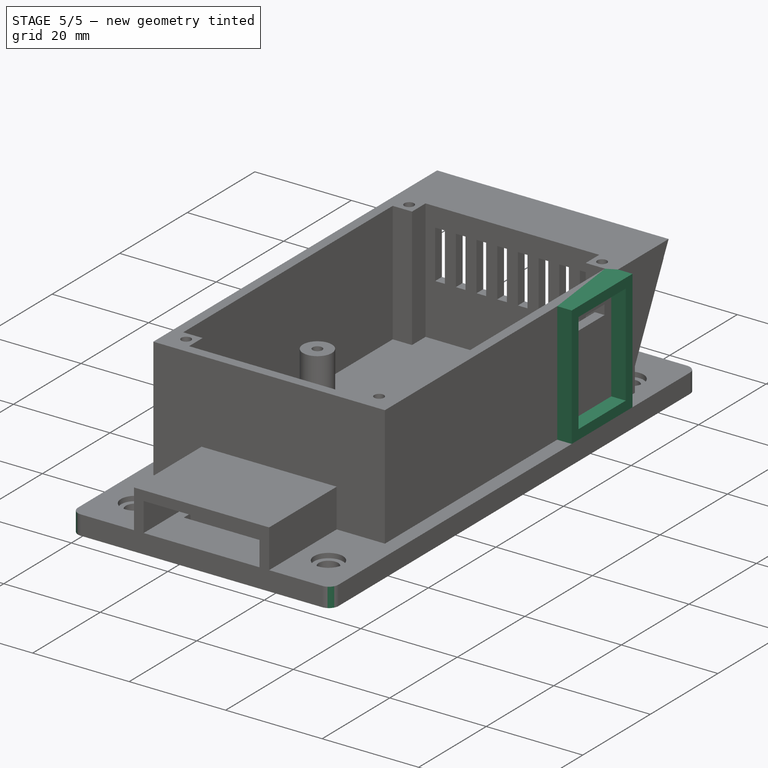
[diagram: stage 5 of 5 — iso view after this stage's code; geometry added in this stage tinted green]
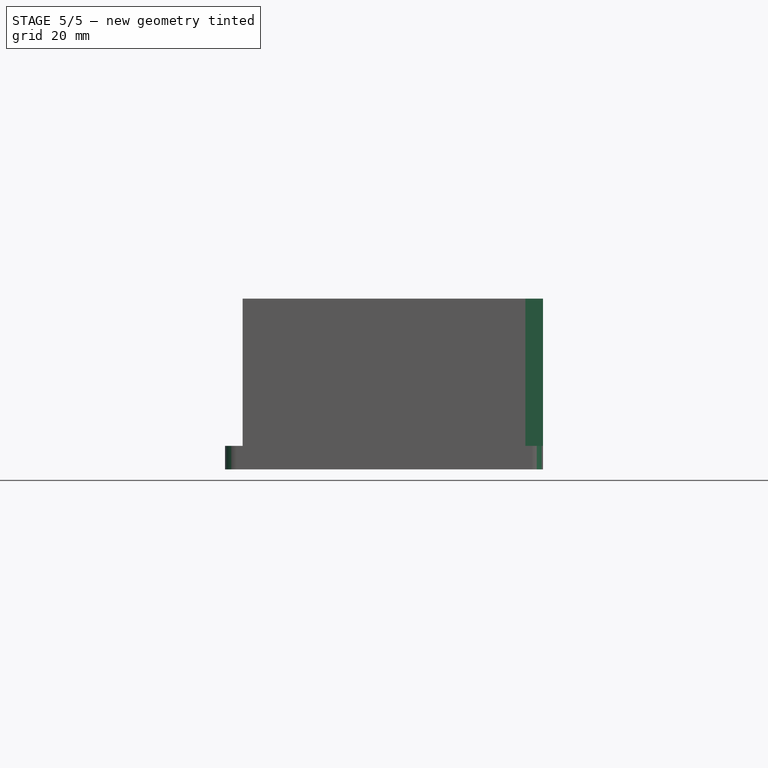
[diagram: stage 5 of 5 — front view after this stage's code; geometry added in this stage tinted green]
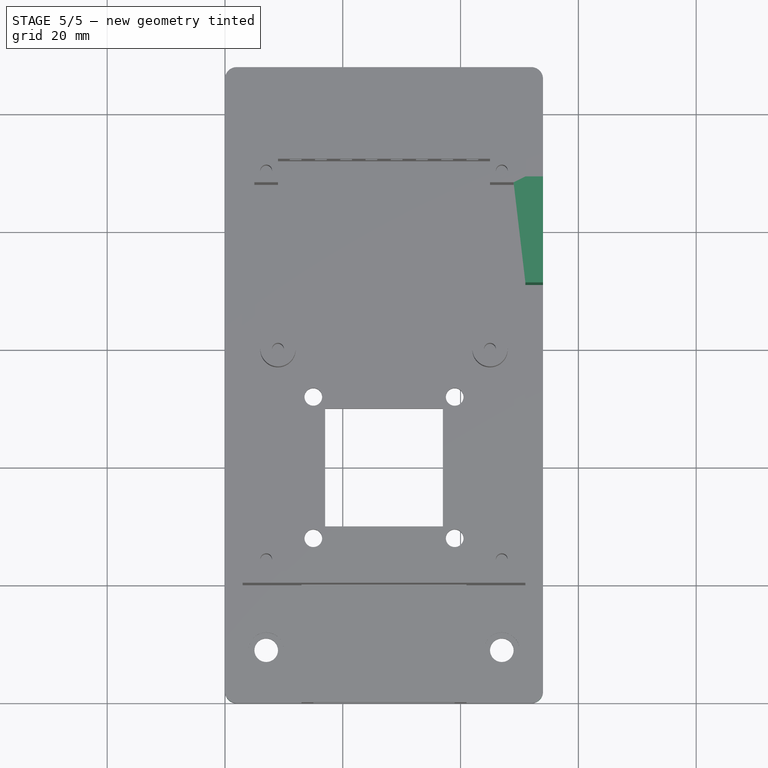
[diagram: stage 5 of 5 — top view after this stage's code; geometry added in this stage tinted green]
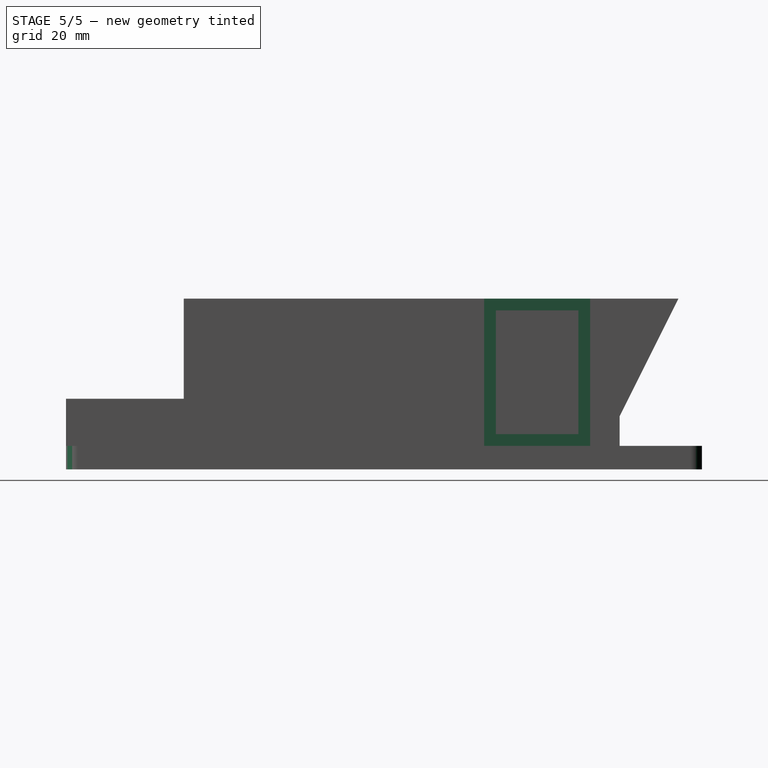
[diagram: stage 5 of 5 — right view after this stage's code; geometry added in this stage tinted green]
FEATURE [Sketcher::SketchObject] Sketch018  label="Protector_Cable_Servos"
  Placement = pos=(51,0,0) rot=(0.57735,0.57735,0.57735;2.0944rad)
  Support = -> Pocket009 [Face25]
  sketch-geometry (8):
    g0: LineSegment StartX=73 StartY=27 StartZ=0 EndX=87 EndY=27 EndZ=0
    g1: LineSegment StartX=87 StartY=27 StartZ=0 EndX=87 EndY=6 EndZ=0
    g2: LineSegment StartX=87 StartY=6 StartZ=0 EndX=73 EndY=6 EndZ=0
    g3: LineSegment StartX=73 StartY=6 StartZ=0 EndX=73 EndY=27 EndZ=0
    g4: LineSegment StartX=71 StartY=29 StartZ=0 EndX=89 EndY=29 EndZ=0
    g5: LineSegment StartX=89 StartY=29 StartZ=0 EndX=89 EndY=4 EndZ=0
    g6: LineSegment StartX=89 StartY=4 StartZ=0 EndX=71 EndY=4 EndZ=0
    g7: LineSegment StartX=71 StartY=4 StartZ=0 EndX=71 EndY=29 EndZ=0
  constraints (24):
    c: Coincident(g0,g1)
    c: Coincident(g1,g2)
    c: Coincident(g2,g3)
    c: Coincident(g3,g0)
    c: Horizontal(g0)
    c: Horizontal(g2)
    c: Vertical(g1)
    c: Vertical(g3)
    c: DistanceX(g0,g0) = 14
    c: DistanceY(g3,g3) = 21
    c: Coincident(g4,g5)
    c: Coincident(g5,g6)
    c: Coincident(g6,g7)
    c: Coincident(g7,g4)
    c: Horizontal(g4)
    c: Horizontal(g6)
    c: Vertical(g5)
    c: Vertical(g7)
    c: DistanceX(g4,g4) = 18
    c: DistanceY(g6,g2) = 2
    c: DistanceX(g6,g2) = 2
    c: DistanceY(g7,g7) = 25
    c: DistanceY(g6,g-1) = -4
    c: DistanceX(g-1,g6) = 71
FEATURE [PartDesign::Pad] Pad008
  Length = 3
  Length2 = 100
  Sketch = -> Sketch018
  Type = 0
FEATURE [PartDesign::Fillet] Fillet
  Base = -> Pad008 [Edge24]
  Radius = 2
FEATURE [PartDesign::Fillet] Fillet001
  Base = -> Fillet [Edge42]
  Radius = 2
FEATURE [PartDesign::Fillet] Fillet002
  Base = -> Fillet001 [Edge41]
  Radius = 2
FEATURE [PartDesign::Fillet] Fillet003
  Base = -> Fillet002 [Edge39]
  Radius = 2
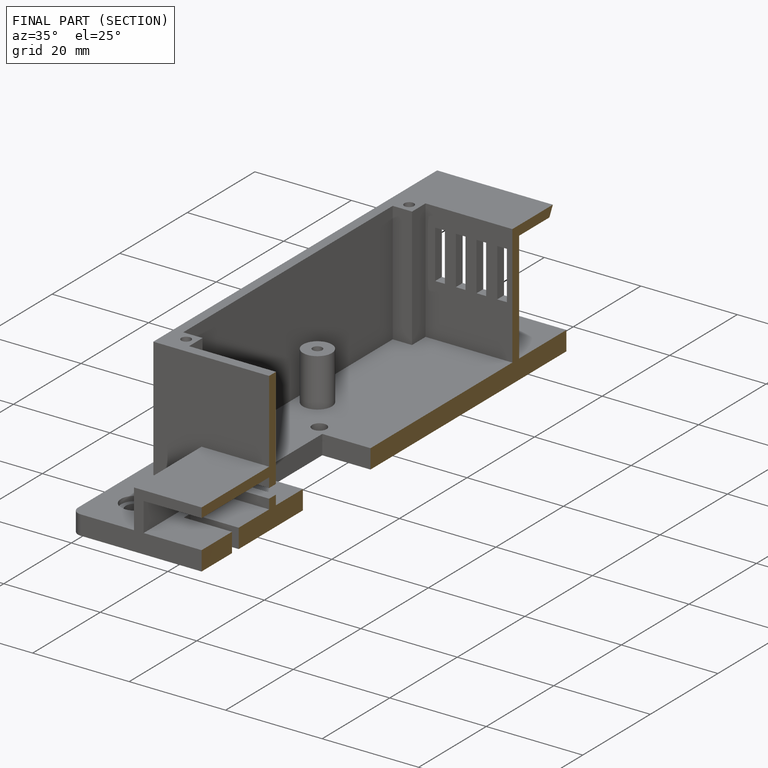
[diagram: finished part — half-section view (interior)]
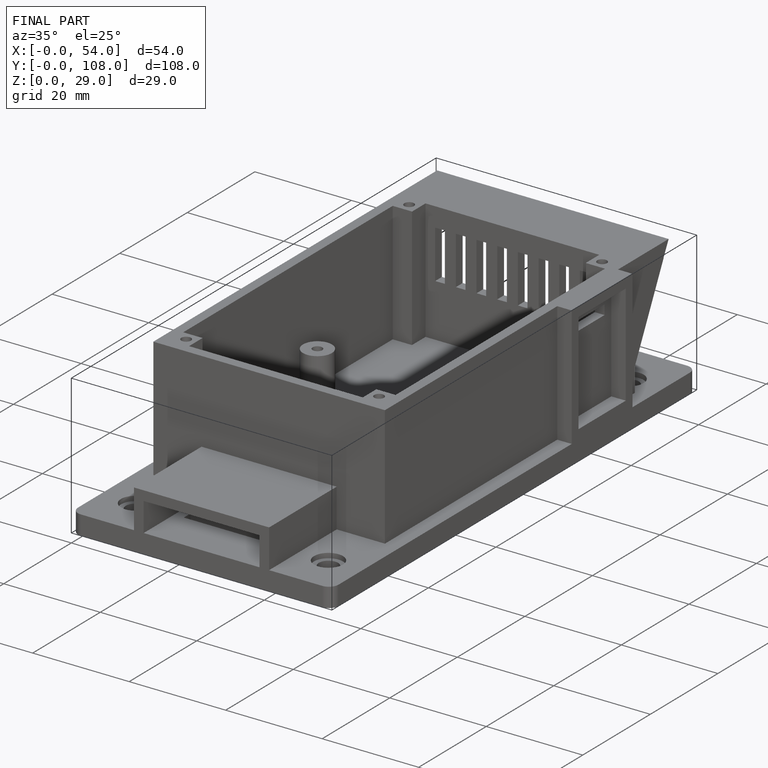
[diagram: finished part — iso view with bounding-box wireframe]
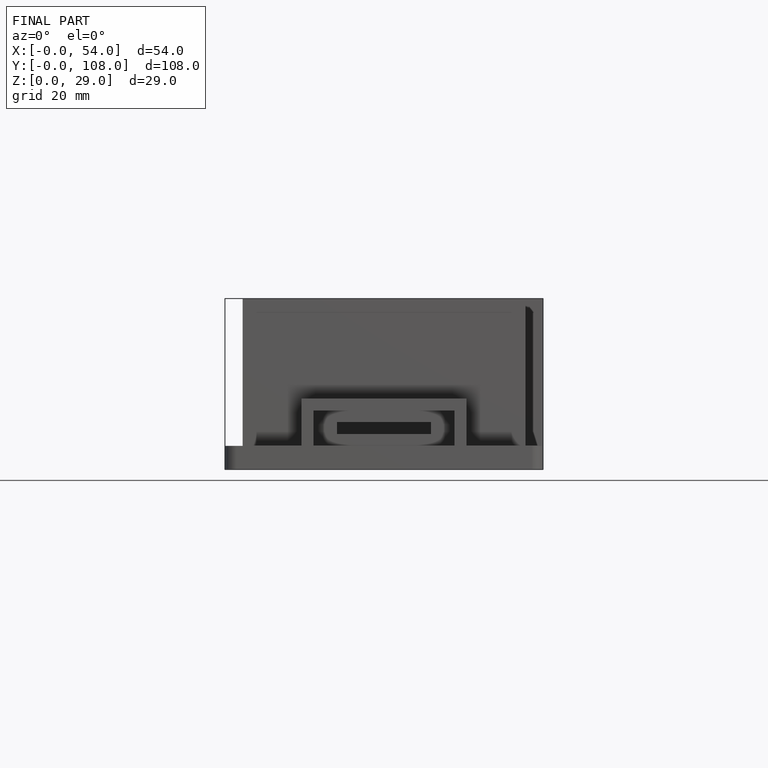
[diagram: finished part — front view with bounding-box wireframe]
